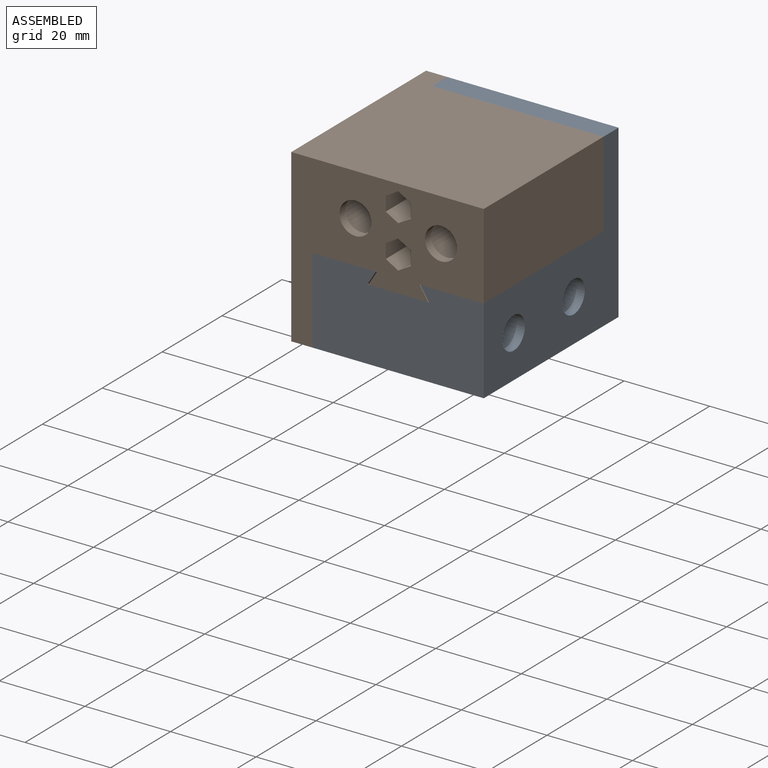
[diagram: assembled view]
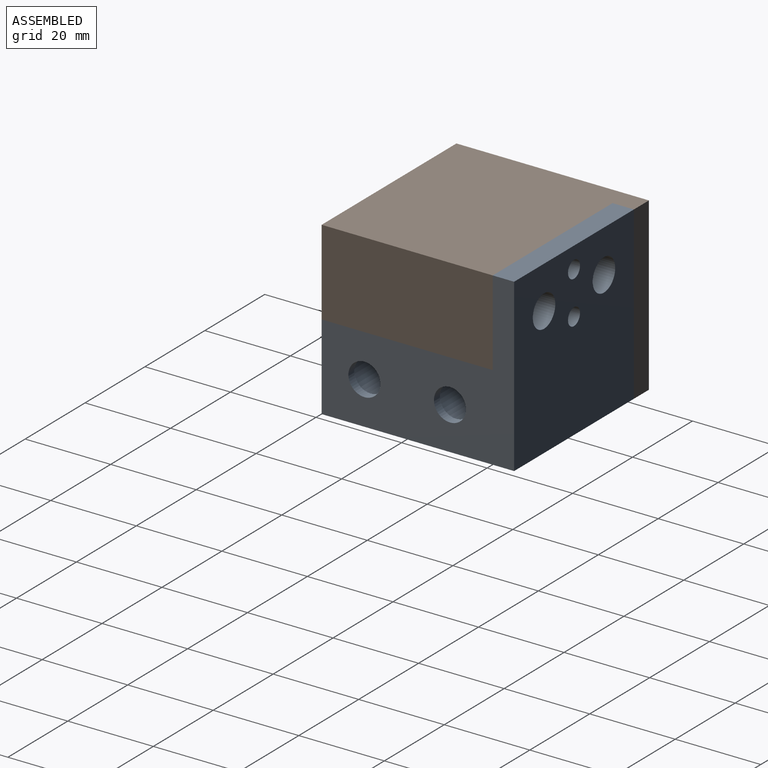
[diagram: assembled view, second angle]
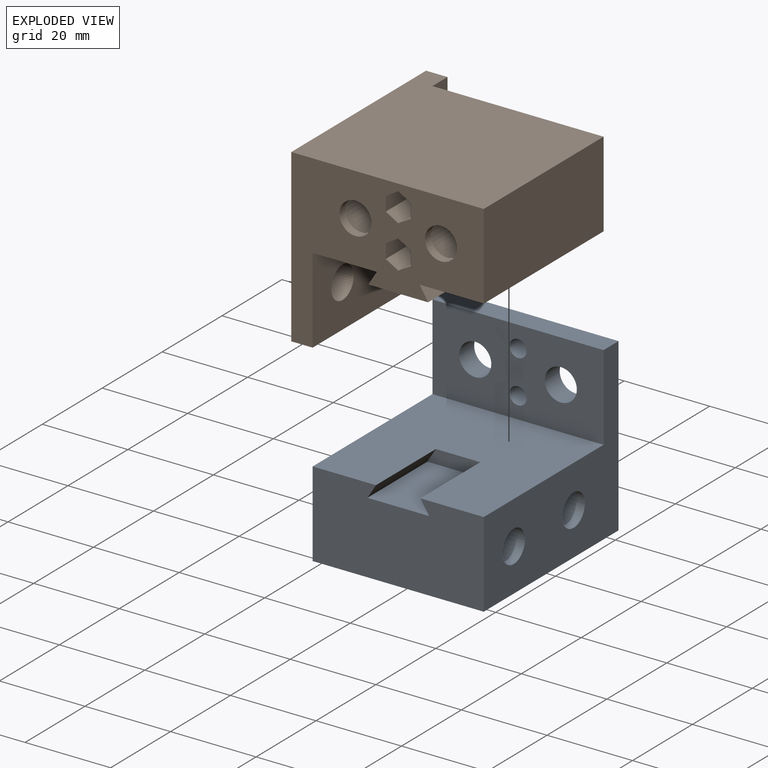
[diagram: exploded view]
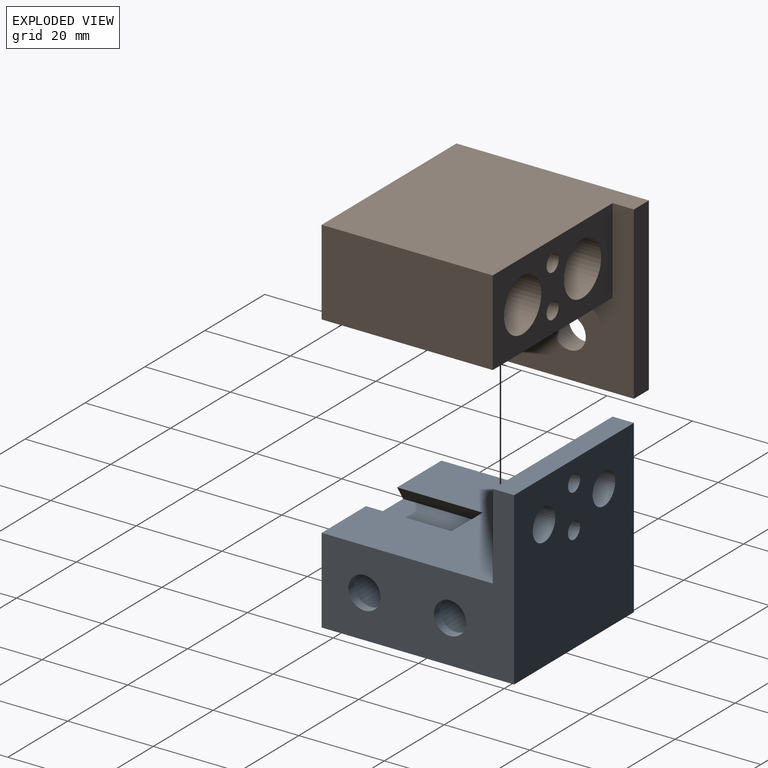
[diagram: exploded view, second angle]
ASSEMBLY  parts=2 mates=2
PART A: 22 faces, bbox 45x40x40 mm
  f0: plane 40x20mm, normal (1,0,0), area 760.3mm2, adj f3,f4,f5,f6,f11,f12,f13
  f1: cylinder r=6.2mm len=38mm, axis (0,1,0), area 1480.3mm2, adj f5,f10
  f2: cylinder r=6.2mm len=38mm, axis (0,1,0), area 1480.3mm2, adj f5,f8
  f3: plane 45x40mm, normal (0,0,-1), area 1800mm2, adj f0,f5,f6,f19
  f4: plane 40x40mm, normal (0,0,1), area 1392mm2, adj f0,f5,f6,f11,f13,f14,f15
  f5: plane 45x40mm, normal (0,-1,0), area 758.5mm2, adj f0,f1,f2,f3,f4,f15,f17,f19
  f6: plane 45x40mm, normal (0,1,0), area 911.6mm2, adj f0,f3,f4,f7,f9,f15,f17,f19
  f7: cylinder r=3.75mm len=7.5mm, axis (0,1,0), area 47.1mm2, adj f6,f8
  f8: plane 12.4x12.4mm, normal (0,-1,0), area 76.6mm2, adj f2,f7
  f9: cylinder r=3.75mm len=7.5mm, axis (0,1,0), area 47.1mm2, adj f6,f10
  f10: plane 12.4x12.4mm, normal (0,-1,0), area 76.6mm2, adj f1,f9
  f11: plane 20x3.2mm, normal (0,0.85,-0.53), area 75.5mm2, adj f0,f4,f12,f14
  f12: plane 20x14.4mm, normal (0,0,1), area 288mm2, adj f0,f11,f13,f14
  f13: plane 20x3.2mm, normal (0,-0.85,-0.53), area 75.5mm2, adj f0,f4,f12,f14
  f14: plane 14.4x3.2mm, normal (1,0,0), area 39.7mm2, adj f4,f11,f12,f13
  f15: plane 40x20mm, normal (1,0,0), area 686.5mm2, adj f4,f5,f6,f16,f17,f18,f20,f21
  f16: cylinder r=3.75mm len=7.5mm, axis (1,0,0), area 117.8mm2, adj f15,f19
  f17: plane 40x5mm, normal (0,0,1), area 200mm2, adj f5,f6,f15,f19
  f18: cylinder r=3.75mm len=7.5mm, axis (1,0,0), area 117.8mm2, adj f15,f19
  f19: plane 40x40mm, normal (-1,0,0), area 1486.5mm2, adj f3,f5,f6,f16,f17,f18,f20,f21
  f20: cylinder r=2mm len=5mm, axis (1,0,0), area 62.8mm2, adj f15,f19
  f21: cylinder r=2mm len=5mm, axis (1,0,0), area 62.8mm2, adj f15,f19
PART B: 37 faces, bbox 45x45x40 mm
  f0: plane 45x40mm, normal (0,-1,0), area 891.1mm2, adj f4,f7,f8,f9,f11,f13,f14,f15
  f1: cylinder r=2mm len=5mm, axis (0,-1,0), area 62.8mm2, adj f3,f36
  f2: cylinder r=2mm len=5mm, axis (0,-1,0), area 62.8mm2, adj f3,f23
  f3: plane 40x20mm, normal (0,1,0), area 533.3mm2, adj f1,f2,f4,f5,f6,f7,f8,f21
  f4: plane 40x40mm, normal (0,0,1), area 1400mm2, adj f0,f3,f8,f14,f15,f16,f21
  f5: cylinder r=6.2mm len=38mm, axis (0,1,0), area 1480.3mm2, adj f3,f12
  f6: cylinder r=6.2mm len=38mm, axis (0,1,0), area 1480.3mm2, adj f3,f10
  f7: plane 45x45mm, normal (0,0,-1), area 1825mm2, adj f0,f3,f8,f20,f21,f22
  f8: plane 40x20mm, normal (-1,0,0), area 800mm2, adj f0,f3,f4,f7
  f9: cylinder r=3.75mm len=7.5mm, axis (0,-1,0), area 47.1mm2, adj f0,f10
  f10: plane 12.4x12.4mm, normal (0,1,0), area 76.6mm2, adj f6,f9
  f11: cylinder r=3.75mm len=7.5mm, axis (0,-1,0), area 47.1mm2, adj f0,f12
  f12: plane 12.4x12.4mm, normal (0,1,0), area 76.6mm2, adj f5,f11
  f13: plane 20x14mm, normal (0,0,1), area 280mm2, adj f0,f14,f15,f16
  f14: plane 20x3.2mm, normal (-0.85,0,-0.53), area 75.5mm2, adj f0,f4,f13,f16
  f15: plane 20x3.2mm, normal (0.85,0,-0.53), area 75.5mm2, adj f0,f4,f13,f16
  f16: plane 14x3.2mm, normal (0,1,0), area 38.4mm2, adj f4,f13,f14,f15
  f17: plane 45x5mm, normal (0,0,1), area 225mm2, adj f0,f20,f21,f22
  f18: cylinder r=3.75mm len=7.5mm, axis (-1,0,0), area 117.8mm2, adj f20,f21
  f19: cylinder r=3.75mm len=7.5mm, axis (-1,0,0), area 117.8mm2, adj f20,f21
  f20: plane 45x40mm, normal (1,0,0), area 1711.6mm2, adj f0,f7,f17,f18,f19,f22
  f21: plane 45x40mm, normal (-1,0,0), area 911.6mm2, adj f0,f3,f4,f7,f17,f18,f19,f22
  f22: plane 40x5mm, normal (0,1,0), area 200mm2, adj f7,f17,f20,f21
  f23: plane 6.74x5.84mm, normal (0,-1,0), area 16.9mm2, adj f2,f24,f25,f26,f27,f28,f29
  f24: plane 35x3.37mm, normal (-1,0,0), area 117.9mm2, adj f0,f23,f25,f29
  f25: plane 35x2.92mm, normal (-0.5,0,-0.87), area 117.9mm2, adj f0,f23,f24,f26
  f26: plane 35x2.92mm, normal (0.5,0,-0.87), area 117.9mm2, adj f0,f23,f25,f27
  f27: plane 35x3.37mm, normal (1,0,0), area 117.9mm2, adj f0,f23,f26,f28
  f28: plane 35x2.92mm, normal (0.5,0,0.87), area 117.9mm2, adj f0,f23,f27,f29
  f29: plane 35x2.92mm, normal (-0.5,0,0.87), area 117.9mm2, adj f0,f23,f24,f28
  f30: plane 35x3.37mm, normal (-1,0,0), area 117.9mm2, adj f0,f31,f35,f36
  f31: plane 35x2.92mm, normal (-0.5,0,-0.87), area 117.9mm2, adj f0,f30,f32,f36
  f32: plane 35x2.92mm, normal (0.5,0,-0.87), area 117.9mm2, adj f0,f31,f33,f36
  f33: plane 35x3.37mm, normal (1,0,0), area 117.9mm2, adj f0,f32,f34,f36
  f34: plane 35x2.92mm, normal (0.5,0,0.87), area 117.9mm2, adj f0,f33,f35,f36
  f35: plane 35x2.92mm, normal (-0.5,0,0.87), area 117.9mm2, adj f0,f30,f34,f36
  f36: plane 6.74x5.84mm, normal (0,-1,0), area 16.9mm2, adj f1,f30,f31,f32,f33,f34,f35
PLACE A rot(axis=(0,0,-1),90deg) t=(-0.62,-3.09,-4.1)mm fixed
PLACE B rot(axis=(0,1,0),180deg) t=(-0.62,-3.09,15.9)mm
MATE planar B.f16 <-> A.f14  axis (0,1,0) through (-0.62,-3.09,4.21)mm
MATE planar B.f13 <-> A.f12  axis (0,0,-1) through (-0.62,-13.09,2.7)mm
